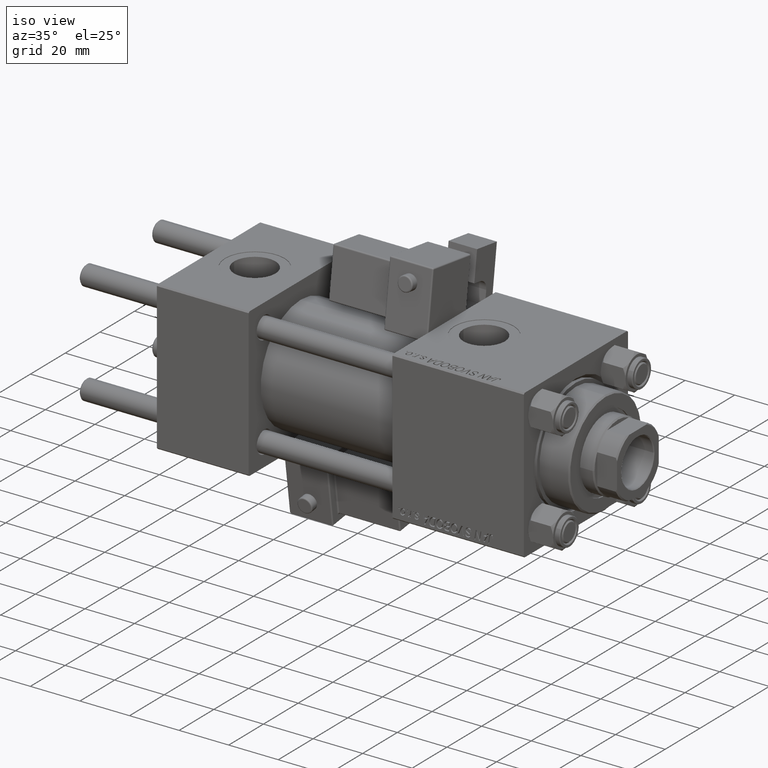
[diagram: clean part render]
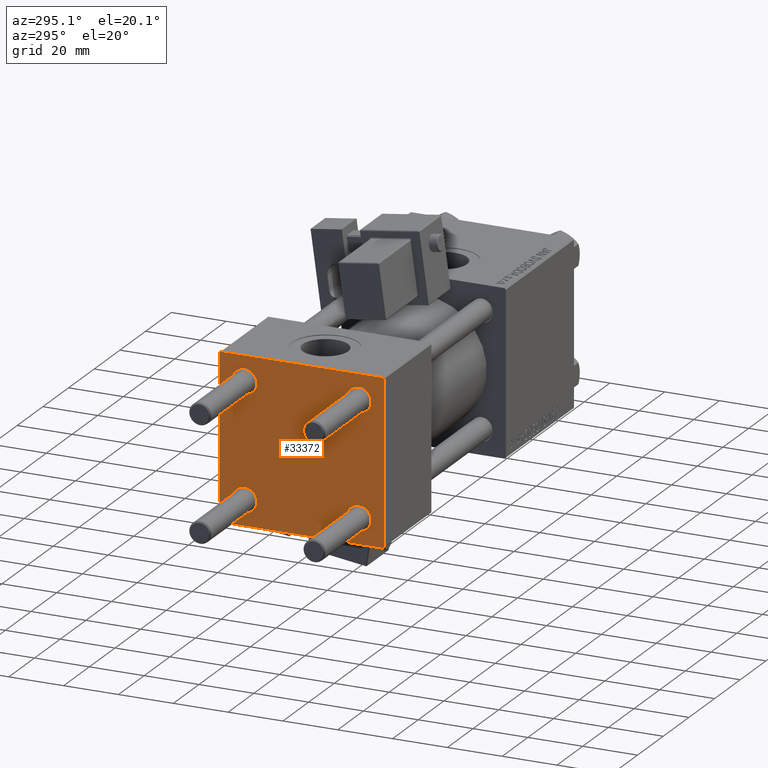
[diagram: tour spotlight — one face highlighted and labeled with its STEP entity id]
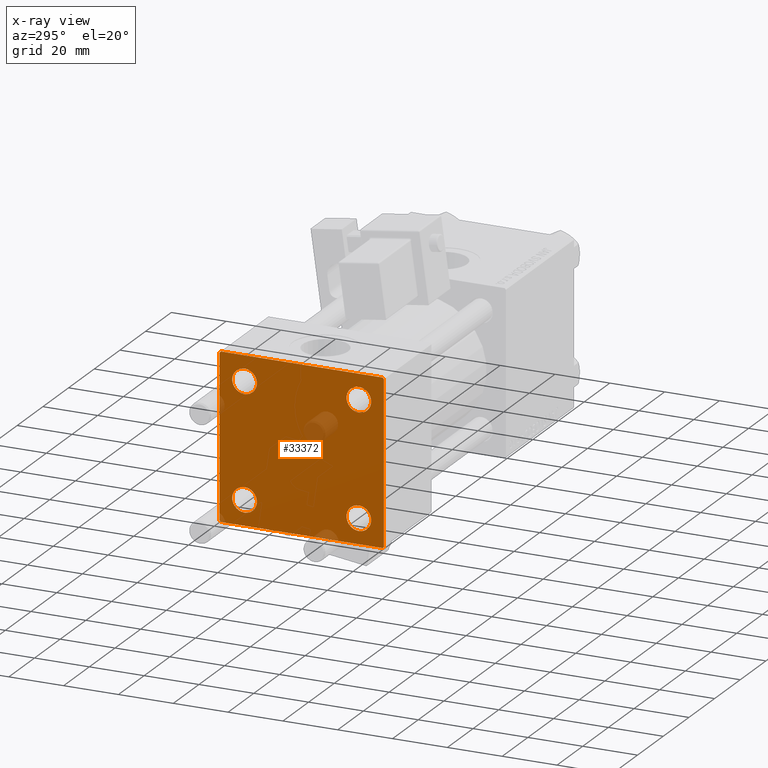
[diagram: x-ray of the same camera — body ghosted, this tour face saturated]
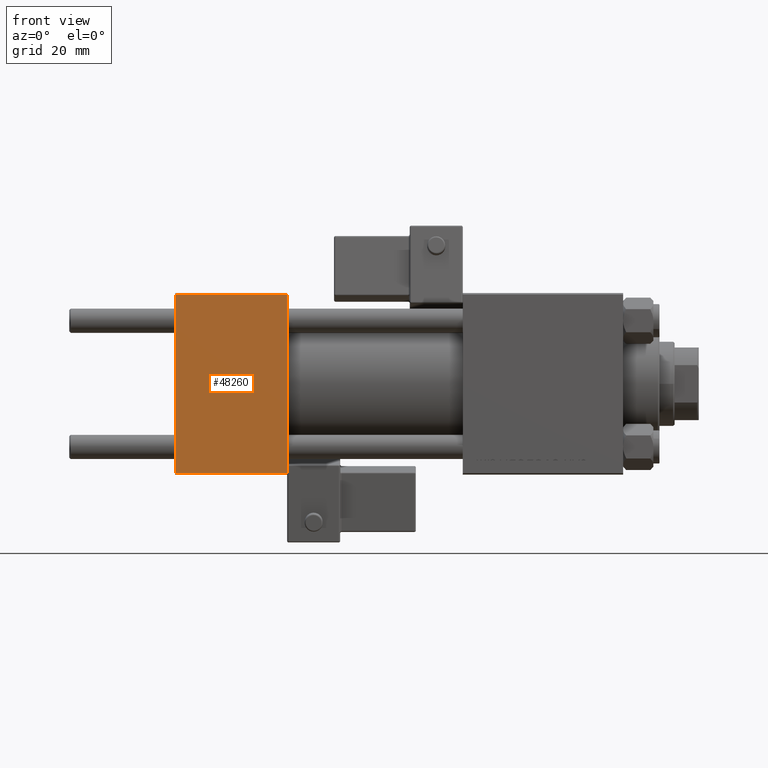
[diagram: tour spotlight — one face highlighted and labeled with its STEP entity id]
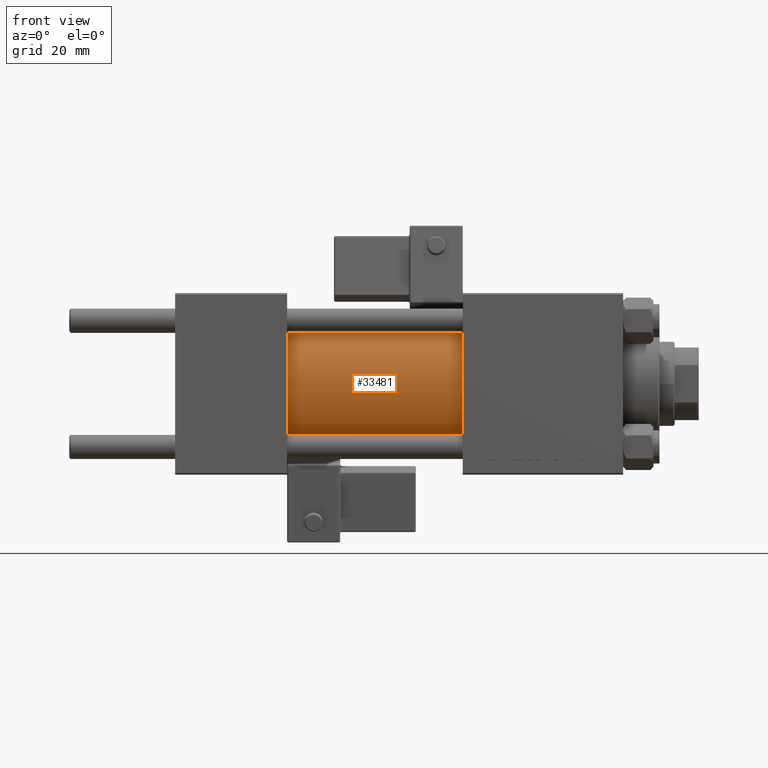
[diagram: tour spotlight — one face highlighted and labeled with its STEP entity id]
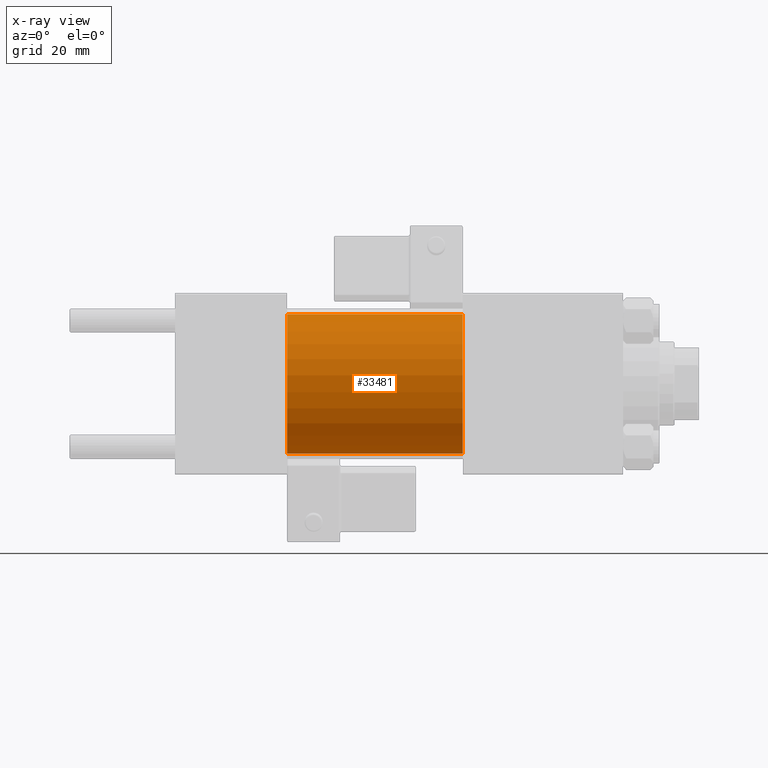
[diagram: x-ray of the same camera — body ghosted, this tour face saturated]
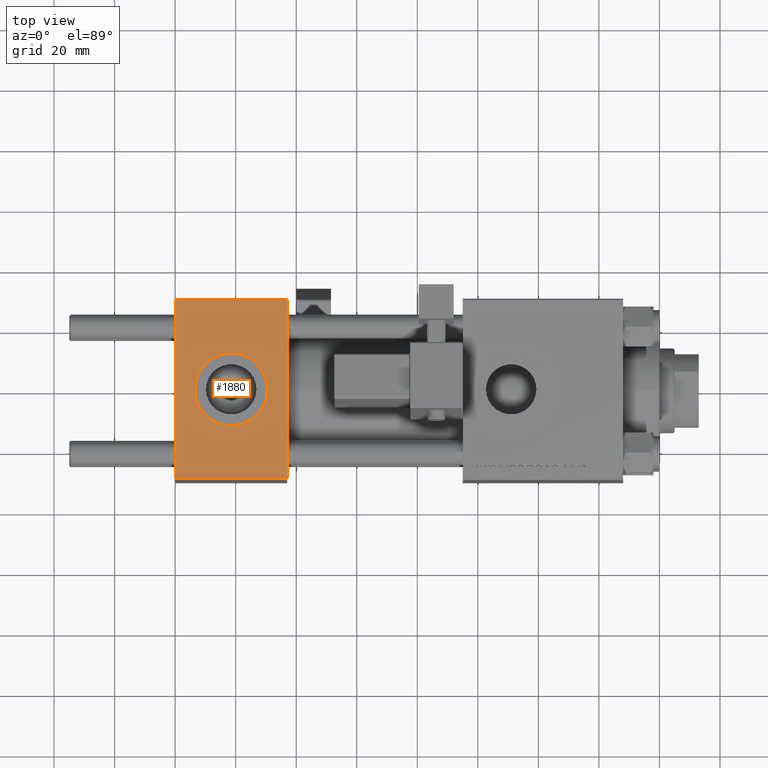
[diagram: tour spotlight — one face highlighted and labeled with its STEP entity id]
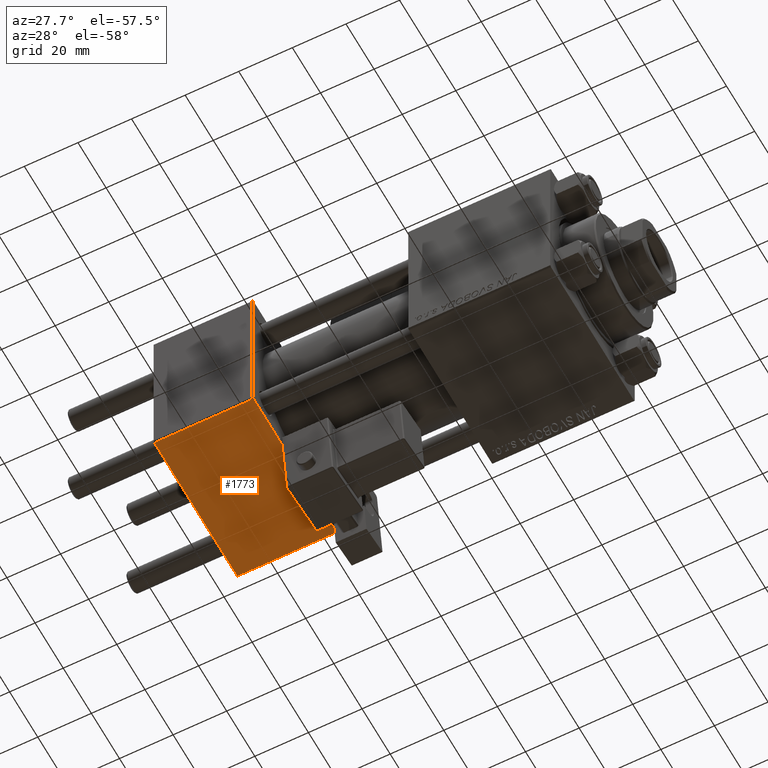
[diagram: tour spotlight — one face highlighted and labeled with its STEP entity id]
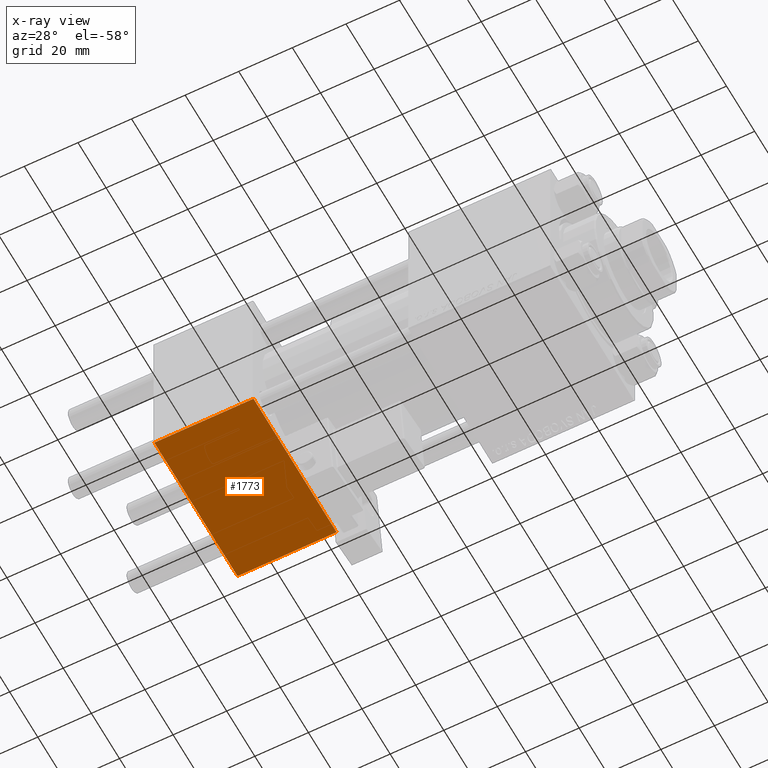
[diagram: x-ray of the same camera — body ghosted, this tour face saturated]
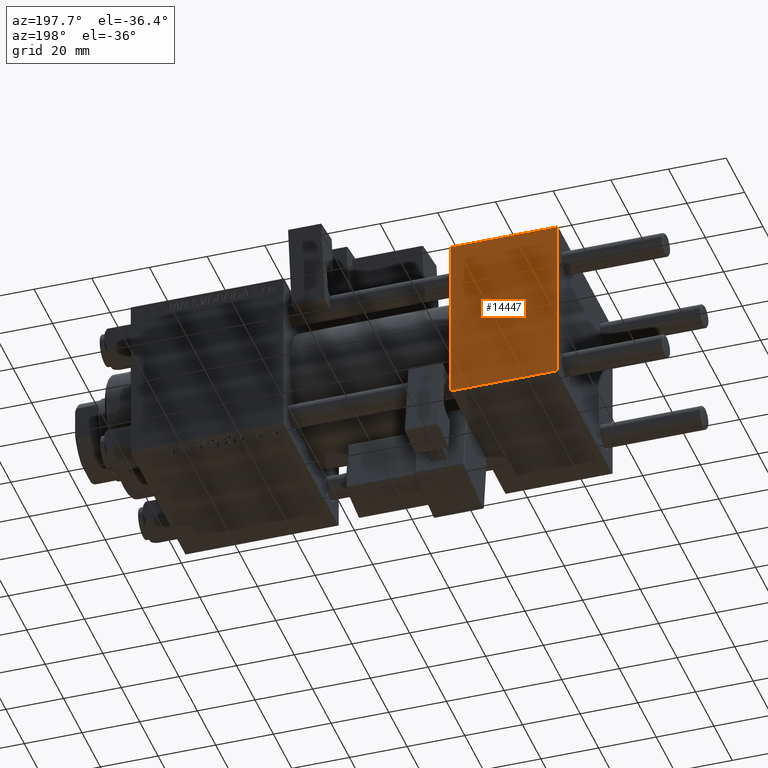
[diagram: tour spotlight — one face highlighted and labeled with its STEP entity id]
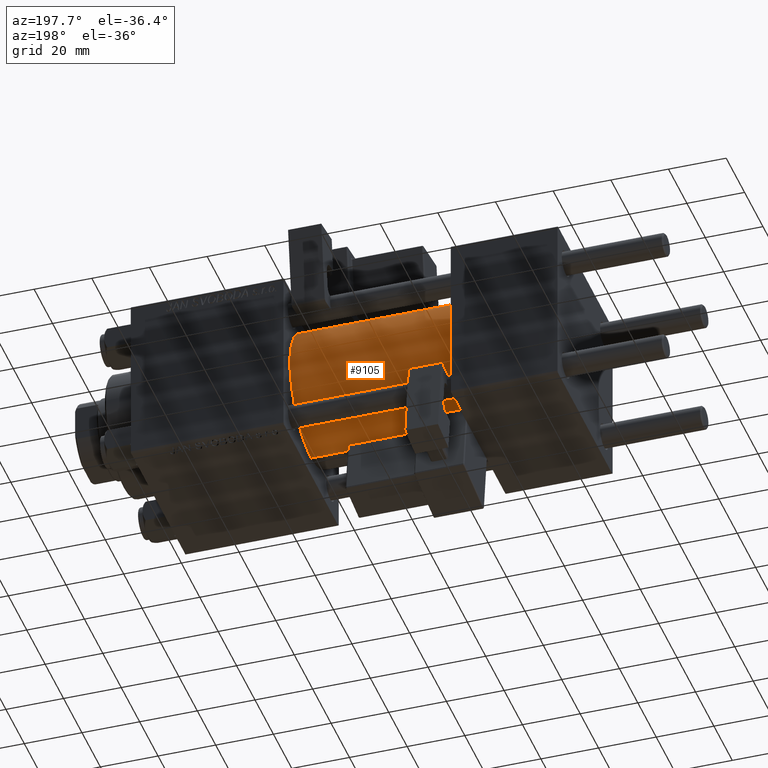
[diagram: tour spotlight — one face highlighted and labeled with its STEP entity id]
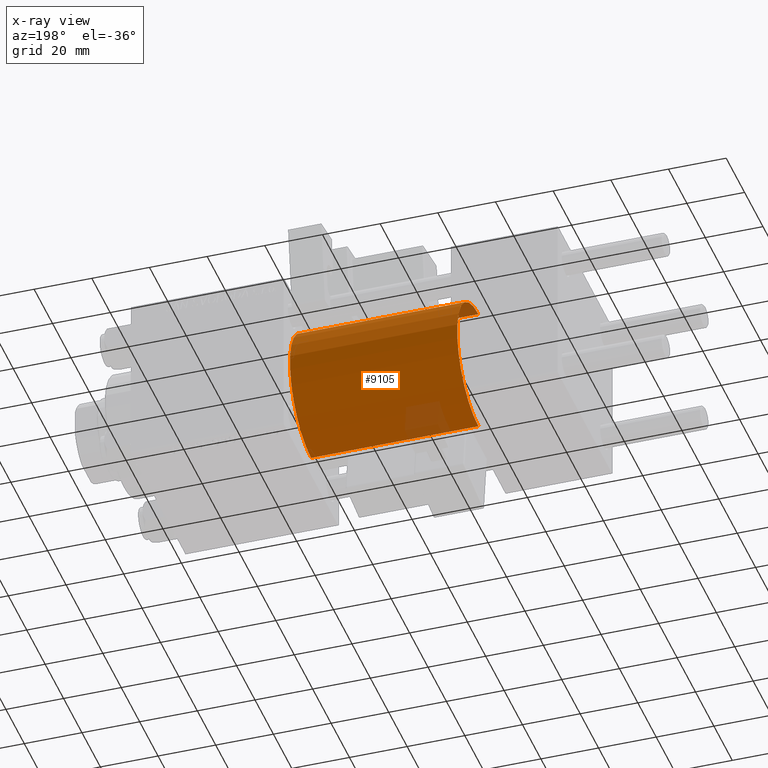
[diagram: x-ray of the same camera — body ghosted, this tour face saturated]
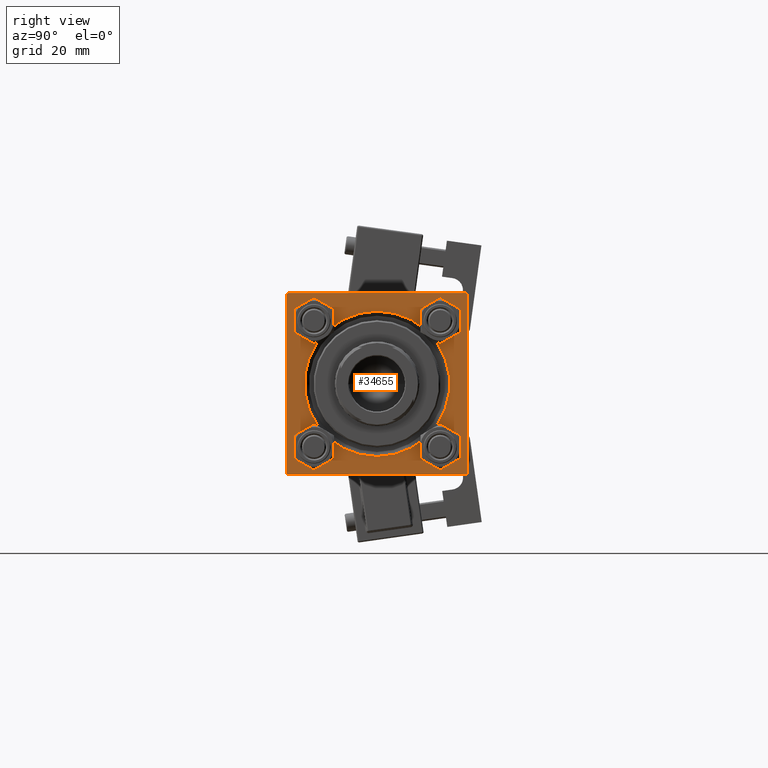
[diagram: tour spotlight — one face highlighted and labeled with its STEP entity id]
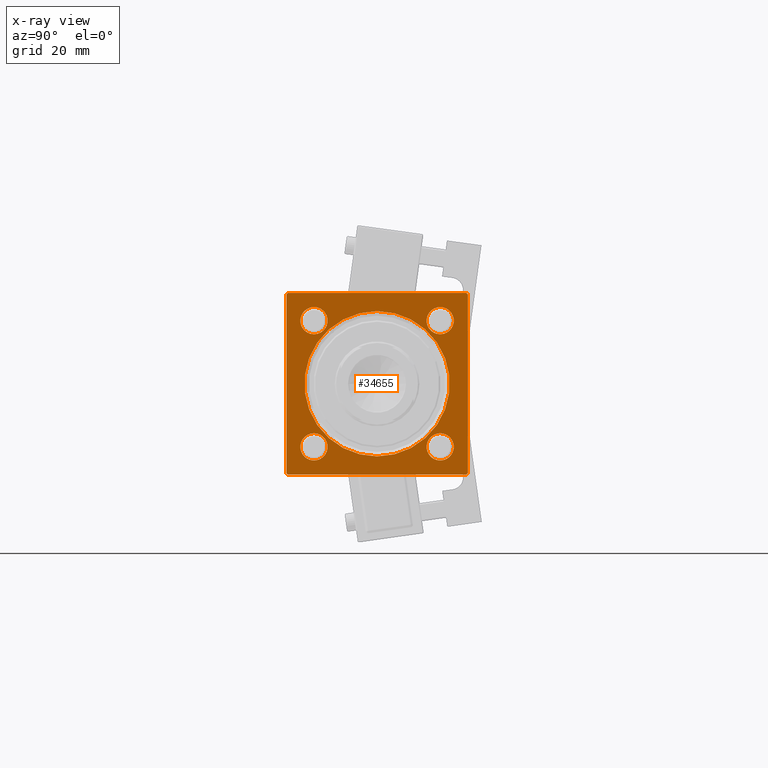
[diagram: x-ray of the same camera — body ghosted, this tour face saturated]
A machine part: a face-by-face anatomy tour. The part has 1289 B-rep faces; the first image is the clean iso view, then the 8 largest visible faces are spotlighted one at a time (largest first), each with its STEP entity span.

Face 1 — auxiliary view, entity #33372. An x-ray twin of the same camera follows (body ghosted, this face saturated) — the face is partly hidden behind the body. In plain terms, the highlighted planar face has unit normal (-1, 0, 0).
Definition (entity closure, byte-faithful):
#312 = DIRECTION ( 'NONE',  ( 1.000000000000000000, -0.000000000000000000, 0.000000000000000000 ) ) ;
#360 = ORIENTED_EDGE ( 'NONE', *, *, #28224, .T. ) ;
#1149 = VERTEX_POINT ( 'NONE', #22209 ) ;
#2247 = EDGE_CURVE ( 'NONE', #10336, #37616, #29978, .T. ) ;
#3004 = ORIENTED_EDGE ( 'NONE', *, *, #37966, .T. ) ;
#3576 = CARTESIAN_POINT ( 'NONE',  ( 0.000000000000000000, 20.84999999999999787, 20.85000000000000142 ) ) ;
#3833 = CIRCLE ( 'NONE', #33278, 4.500000000000017764 ) ;
#4667 = CIRCLE ( 'NONE', #43335, 4.500000000000017764 ) ;
#5404 = PLANE ( 'NONE',  #40659 ) ;
#5896 = DIRECTION ( 'NONE',  ( -0.000000000000000000, 0.7071067811865474617, 0.7071067811865474617 ) ) ;
#6276 = LINE ( 'NONE', #22338, #8776 ) ;
#6334 = CARTESIAN_POINT ( 'NONE',  ( 0.000000000000000000, -20.84999999999999076, -20.85000000000000497 ) ) ;
#6416 = CARTESIAN_POINT ( 'NONE',  ( 0.000000000000000000, 29.99999999999999289, 30.00000000000000000 ) ) ;
#6659 = CARTESIAN_POINT ( 'NONE',  ( -0.000000000000000000, -29.74999999999999645, 29.74999999999999645 ) ) ;
#7785 = CARTESIAN_POINT ( 'NONE',  ( 0.000000000000000000, 29.74999999999999645, 29.74999999999999645 ) ) ;
#8776 = VECTOR ( 'NONE', #42881, 1000.000000000000114 ) ;
#8823 = CARTESIAN_POINT ( 'NONE',  ( 0.000000000000000000, -29.49999999999998579, 29.99999999999999289 ) ) ;
#9014 = CARTESIAN_POINT ( 'NONE',  ( 0.000000000000000000, 20.84999999999999787, -25.35000000000001918 ) ) ;
#9528 = CARTESIAN_POINT ( 'NONE',  ( 0.000000000000000000, 29.49999999999997868, -30.00000000000000000 ) ) ;
#9599 = DIRECTION ( 'NONE',  ( 0.000000000000000000, 0.000000000000000000, 1.000000000000000000 ) ) ;
#9682 = CIRCLE ( 'NONE', #34781, 4.500000000000017764 ) ;
#9891 = AXIS2_PLACEMENT_3D ( 'NONE', #38371, #18350, #50481 ) ;
#10229 = CARTESIAN_POINT ( 'NONE',  ( 0.000000000000000000, 29.49999999999999289, 30.00000000000000000 ) ) ;
#10336 = VERTEX_POINT ( 'NONE', #16909 ) ;
#10354 = VECTOR ( 'NONE', #45690, 1000.000000000000000 ) ;
#10397 = EDGE_CURVE ( 'NONE', #37616, #10336, #20166, .T. ) ;
#10514 = VERTEX_POINT ( 'NONE', #43451 ) ;
#10870 = EDGE_LOOP ( 'NONE', ( #16380, #360 ) ) ;
#11033 = AXIS2_PLACEMENT_3D ( 'NONE', #43988, #24508, #23725 ) ;
#11694 = ORIENTED_EDGE ( 'NONE', *, *, #38946, .T. ) ;
#11739 = DIRECTION ( 'NONE',  ( 0.000000000000000000, 0.7071067811865474617, -0.7071067811865474617 ) ) ;
#11965 = VERTEX_POINT ( 'NONE', #10229 ) ;
#12188 = CARTESIAN_POINT ( 'NONE',  ( 0.000000000000000000, -30.00000000000000000, -29.50000000000001776 ) ) ;
#12196 = LINE ( 'NONE', #40379, #29919 ) ;
#13226 = CARTESIAN_POINT ( 'NONE',  ( 0.000000000000000000, 20.84999999999999787, -20.85000000000000142 ) ) ;
#13227 = EDGE_CURVE ( 'NONE', #34389, #31719, #14053, .T. ) ;
#13630 = CARTESIAN_POINT ( 'NONE',  ( 0.000000000000000000, 29.99999999999999289, 29.50000000000000000 ) ) ;
#13790 = VERTEX_POINT ( 'NONE', #29545 ) ;
#14023 = ORIENTED_EDGE ( 'NONE', *, *, #44993, .T. ) ;
#14053 = LINE ( 'NONE', #6659, #27003 ) ;
#15375 = ORIENTED_EDGE ( 'NONE', *, *, #13227, .T. ) ;
#15692 = DIRECTION ( 'NONE',  ( 1.000000000000000000, -0.000000000000000000, 0.000000000000000000 ) ) ;
#16380 = ORIENTED_EDGE ( 'NONE', *, *, #51815, .T. ) ;
#16909 = CARTESIAN_POINT ( 'NONE',  ( 0.000000000000000000, -20.84999999999999076, -25.35000000000002274 ) ) ;
#16952 = EDGE_CURVE ( 'NONE', #10514, #13790, #39340, .T. ) ;
#16980 = ORIENTED_EDGE ( 'NONE', *, *, #41583, .T. ) ;
#17004 = DIRECTION ( 'NONE',  ( -1.000000000000000000, 0.000000000000000000, -0.000000000000000000 ) ) ;
#17255 = FACE_BOUND ( 'NONE', #17618, .T. ) ;
#17466 = ORIENTED_EDGE ( 'NONE', *, *, #28826, .T. ) ;
#17617 = LINE ( 'NONE', #33931, #28157 ) ;
#17618 = EDGE_LOOP ( 'NONE', ( #17651, #17784 ) ) ;
#17651 = ORIENTED_EDGE ( 'NONE', *, *, #10397, .T. ) ;
#17784 = ORIENTED_EDGE ( 'NONE', *, *, #2247, .T. ) ;
#18350 = DIRECTION ( 'NONE',  ( 1.000000000000000000, -0.000000000000000000, 0.000000000000000000 ) ) ;
#18583 = CARTESIAN_POINT ( 'NONE',  ( 0.000000000000000000, -20.84999999999999076, -20.85000000000000497 ) ) ;
#19196 = VERTEX_POINT ( 'NONE', #13630 ) ;
#19516 = CARTESIAN_POINT ( 'NONE',  ( 0.000000000000000000, -20.84999999999999076, 16.34999999999998721 ) ) ;
#19791 = VERTEX_POINT ( 'NONE', #19516 ) ;
#20166 = CIRCLE ( 'NONE', #51246, 4.500000000000017764 ) ;
#20634 = VERTEX_POINT ( 'NONE', #27093 ) ;
#21467 = DIRECTION ( 'NONE',  ( -0.000000000000000000, 0.000000000000000000, 1.000000000000000000 ) ) ;
#21477 = VERTEX_POINT ( 'NONE', #9014 ) ;
#21726 = CARTESIAN_POINT ( 'NONE',  ( 0.000000000000000000, 29.99999999999999289, -30.00000000000000000 ) ) ;
#22209 = CARTESIAN_POINT ( 'NONE',  ( 0.000000000000000000, -29.50000000000000000, -30.00000000000000711 ) ) ;
#22338 = CARTESIAN_POINT ( 'NONE',  ( 0.000000000000000000, -29.75000000000001066, -29.75000000000001066 ) ) ;
#23725 = DIRECTION ( 'NONE',  ( 0.000000000000000000, 0.000000000000000000, 1.000000000000000000 ) ) ;
#23762 = ORIENTED_EDGE ( 'NONE', *, *, #44448, .T. ) ;
#24508 = DIRECTION ( 'NONE',  ( 1.000000000000000000, -0.000000000000000000, 0.000000000000000000 ) ) ;
#24535 = VECTOR ( 'NONE', #33428, 1000.000000000000000 ) ;
#24904 = CARTESIAN_POINT ( 'NONE',  ( 0.000000000000000000, 0.000000000000000000, 0.000000000000000000 ) ) ;
#25424 = FACE_BOUND ( 'NONE', #10870, .T. ) ;
#25672 = CARTESIAN_POINT ( 'NONE',  ( 0.000000000000000000, 20.84999999999999787, -20.85000000000000142 ) ) ;
#26194 = ORIENTED_EDGE ( 'NONE', *, *, #28292, .F. ) ;
#26949 = LINE ( 'NONE', #6416, #48498 ) ;
#27003 = VECTOR ( 'NONE', #5896, 1000.000000000000114 ) ;
#27093 = CARTESIAN_POINT ( 'NONE',  ( 0.000000000000000000, 20.84999999999999787, -16.34999999999998366 ) ) ;
#27517 = LINE ( 'NONE', #7785, #47222 ) ;
#27889 = VERTEX_POINT ( 'NONE', #12188 ) ;
#28157 = VECTOR ( 'NONE', #30232, 999.9999999999998863 ) ;
#28224 = EDGE_CURVE ( 'NONE', #19791, #37501, #33750, .T. ) ;
#28292 = EDGE_CURVE ( 'NONE', #34389, #27889, #33700, .T. ) ;
#28826 = EDGE_CURVE ( 'NONE', #11965, #19196, #27517, .T. ) ;
#29010 = DIRECTION ( 'NONE',  ( 0.000000000000000000, 0.000000000000000000, 1.000000000000000000 ) ) ;
#29545 = CARTESIAN_POINT ( 'NONE',  ( 0.000000000000000000, 20.84999999999999787, 16.34999999999998366 ) ) ;
#29622 = LINE ( 'NONE', #21726, #10354 ) ;
#29643 = ORIENTED_EDGE ( 'NONE', *, *, #33416, .T. ) ;
#29919 = VECTOR ( 'NONE', #36672, 1000.000000000000000 ) ;
#29978 = CIRCLE ( 'NONE', #40059, 4.500000000000017764 ) ;
#30232 = DIRECTION ( 'NONE',  ( -0.000000000000000000, -0.7071067811865574537, -0.7071067811865376918 ) ) ;
#30812 = EDGE_LOOP ( 'NONE', ( #16980, #38016 ) ) ;
#31142 = CARTESIAN_POINT ( 'NONE',  ( 0.000000000000000000, -20.84999999999999076, 25.35000000000002274 ) ) ;
#31274 = CARTESIAN_POINT ( 'NONE',  ( 0.000000000000000000, -20.84999999999999076, -16.34999999999998721 ) ) ;
#31719 = VERTEX_POINT ( 'NONE', #8823 ) ;
#32595 = CIRCLE ( 'NONE', #9891, 4.500000000000017764 ) ;
#33278 = AXIS2_PLACEMENT_3D ( 'NONE', #3576, #15692, #43875 ) ;
#33372 = ADVANCED_FACE ( 'NONE', ( #25424, #17255, #38050, #41492, #42004 ), #5404, .T. ) ;
#33416 = EDGE_CURVE ( 'NONE', #42861, #1149, #29622, .T. ) ;
#33428 = DIRECTION ( 'NONE',  ( 0.000000000000000000, 0.000000000000000000, -1.000000000000000000 ) ) ;
#33487 = AXIS2_PLACEMENT_3D ( 'NONE', #45661, #34059, #9599 ) ;
#33700 = LINE ( 'NONE', #49235, #24535 ) ;
#33750 = CIRCLE ( 'NONE', #11033, 4.500000000000017764 ) ;
#33931 = CARTESIAN_POINT ( 'NONE',  ( 0.000000000000000000, 29.74999999999957723, -29.75000000000040501 ) ) ;
#34059 = DIRECTION ( 'NONE',  ( 1.000000000000000000, -0.000000000000000000, 0.000000000000000000 ) ) ;
#34389 = VERTEX_POINT ( 'NONE', #49197 ) ;
#34781 = AXIS2_PLACEMENT_3D ( 'NONE', #13226, #312, #29010 ) ;
#36307 = EDGE_LOOP ( 'NONE', ( #44147, #14023 ) ) ;
#36672 = DIRECTION ( 'NONE',  ( 0.000000000000000000, 0.000000000000000000, -1.000000000000000000 ) ) ;
#37027 = DIRECTION ( 'NONE',  ( 1.000000000000000000, -0.000000000000000000, 0.000000000000000000 ) ) ;
#37501 = VERTEX_POINT ( 'NONE', #31142 ) ;
#37516 = EDGE_CURVE ( 'NONE', #21477, #20634, #9682, .T. ) ;
#37616 = VERTEX_POINT ( 'NONE', #31274 ) ;
#37966 = EDGE_CURVE ( 'NONE', #42778, #42861, #17617, .T. ) ;
#38016 = ORIENTED_EDGE ( 'NONE', *, *, #37516, .T. ) ;
#38050 = FACE_BOUND ( 'NONE', #30812, .T. ) ;
#38371 = CARTESIAN_POINT ( 'NONE',  ( 0.000000000000000000, -20.84999999999999076, 20.85000000000000497 ) ) ;
#38946 = EDGE_CURVE ( 'NONE', #1149, #27889, #6276, .T. ) ;
#39340 = CIRCLE ( 'NONE', #33487, 4.500000000000017764 ) ;
#40059 = AXIS2_PLACEMENT_3D ( 'NONE', #18583, #51680, #48004 ) ;
#40379 = CARTESIAN_POINT ( 'NONE',  ( 0.000000000000000000, 29.99999999999999289, 30.00000000000000000 ) ) ;
#40659 = AXIS2_PLACEMENT_3D ( 'NONE', #24904, #17004, #21467 ) ;
#41056 = EDGE_LOOP ( 'NONE', ( #23762, #3004, #29643, #11694, #26194, #15375, #47386, #17466 ) ) ;
#41492 = FACE_BOUND ( 'NONE', #36307, .T. ) ;
#41583 = EDGE_CURVE ( 'NONE', #20634, #21477, #4667, .T. ) ;
#41904 = DIRECTION ( 'NONE',  ( 0.000000000000000000, 0.000000000000000000, 1.000000000000000000 ) ) ;
#42004 = FACE_OUTER_BOUND ( 'NONE', #41056, .T. ) ;
#42762 = DIRECTION ( 'NONE',  ( 0.000000000000000000, -1.000000000000000000, -1.156482317317871725E-16 ) ) ;
#42778 = VERTEX_POINT ( 'NONE', #44028 ) ;
#42861 = VERTEX_POINT ( 'NONE', #9528 ) ;
#42881 = DIRECTION ( 'NONE',  ( 0.000000000000000000, -0.7071067811865474617, 0.7071067811865474617 ) ) ;
#43335 = AXIS2_PLACEMENT_3D ( 'NONE', #25672, #37027, #49651 ) ;
#43451 = CARTESIAN_POINT ( 'NONE',  ( 0.000000000000000000, 20.84999999999999787, 25.35000000000001918 ) ) ;
#43875 = DIRECTION ( 'NONE',  ( 0.000000000000000000, 0.000000000000000000, 1.000000000000000000 ) ) ;
#43988 = CARTESIAN_POINT ( 'NONE',  ( 0.000000000000000000, -20.84999999999999076, 20.85000000000000497 ) ) ;
#44028 = CARTESIAN_POINT ( 'NONE',  ( 0.000000000000000000, 29.99999999999999289, -29.50000000000000000 ) ) ;
#44147 = ORIENTED_EDGE ( 'NONE', *, *, #16952, .T. ) ;
#44448 = EDGE_CURVE ( 'NONE', #19196, #42778, #12196, .T. ) ;
#44993 = EDGE_CURVE ( 'NONE', #13790, #10514, #3833, .T. ) ;
#45661 = CARTESIAN_POINT ( 'NONE',  ( 0.000000000000000000, 20.84999999999999787, 20.85000000000000142 ) ) ;
#45690 = DIRECTION ( 'NONE',  ( 0.000000000000000000, -1.000000000000000000, -1.156482317317871725E-16 ) ) ;
#47222 = VECTOR ( 'NONE', #11739, 1000.000000000000114 ) ;
#47386 = ORIENTED_EDGE ( 'NONE', *, *, #49903, .F. ) ;
#48004 = DIRECTION ( 'NONE',  ( 0.000000000000000000, 0.000000000000000000, 1.000000000000000000 ) ) ;
#48498 = VECTOR ( 'NONE', #42762, 1000.000000000000000 ) ;
#49197 = CARTESIAN_POINT ( 'NONE',  ( 0.000000000000000000, -30.00000000000000000, 29.49999999999999289 ) ) ;
#49235 = CARTESIAN_POINT ( 'NONE',  ( 0.000000000000000000, -30.00000000000000000, 29.99999999999999289 ) ) ;
#49651 = DIRECTION ( 'NONE',  ( 0.000000000000000000, 0.000000000000000000, 1.000000000000000000 ) ) ;
#49903 = EDGE_CURVE ( 'NONE', #11965, #31719, #26949, .T. ) ;
#50481 = DIRECTION ( 'NONE',  ( 0.000000000000000000, 0.000000000000000000, 1.000000000000000000 ) ) ;
#50579 = DIRECTION ( 'NONE',  ( 1.000000000000000000, -0.000000000000000000, 0.000000000000000000 ) ) ;
#51246 = AXIS2_PLACEMENT_3D ( 'NONE', #6334, #50579, #41904 ) ;
#51680 = DIRECTION ( 'NONE',  ( 1.000000000000000000, -0.000000000000000000, 0.000000000000000000 ) ) ;
#51815 = EDGE_CURVE ( 'NONE', #37501, #19791, #32595, .T. ) ;

Face 2 — front view, entity #48260. In plain terms, the highlighted planar face has unit normal (0, 1, 0).
Definition (entity closure, byte-faithful):
#214 = PLANE ( 'NONE',  #45196 ) ;
#1059 = EDGE_CURVE ( 'NONE', #3862, #22306, #14318, .T. ) ;
#2182 = CARTESIAN_POINT ( 'NONE',  ( 37.00000000000000000, -30.00000000000000000, -29.50000000000001776 ) ) ;
#3828 = VECTOR ( 'NONE', #46364, 1000.000000000000000 ) ;
#3862 = VERTEX_POINT ( 'NONE', #31512 ) ;
#4329 = LINE ( 'NONE', #44876, #42091 ) ;
#10722 = ORIENTED_EDGE ( 'NONE', *, *, #42899, .T. ) ;
#10804 = LINE ( 'NONE', #38982, #3828 ) ;
#12188 = CARTESIAN_POINT ( 'NONE',  ( 0.000000000000000000, -30.00000000000000000, -29.50000000000001776 ) ) ;
#12494 = EDGE_CURVE ( 'NONE', #27889, #22306, #4329, .T. ) ;
#13284 = DIRECTION ( 'NONE',  ( 1.000000000000000000, 0.000000000000000000, 0.000000000000000000 ) ) ;
#13329 = ORIENTED_EDGE ( 'NONE', *, *, #28292, .T. ) ;
#14318 = LINE ( 'NONE', #38536, #25000 ) ;
#18512 = DIRECTION ( 'NONE',  ( 0.000000000000000000, 0.000000000000000000, -1.000000000000000000 ) ) ;
#22306 = VERTEX_POINT ( 'NONE', #2182 ) ;
#24535 = VECTOR ( 'NONE', #33428, 1000.000000000000000 ) ;
#25000 = VECTOR ( 'NONE', #18512, 1000.000000000000000 ) ;
#27889 = VERTEX_POINT ( 'NONE', #12188 ) ;
#28292 = EDGE_CURVE ( 'NONE', #34389, #27889, #33700, .T. ) ;
#31512 = CARTESIAN_POINT ( 'NONE',  ( 37.00000000000000000, -30.00000000000000000, 29.49999999999999289 ) ) ;
#31588 = EDGE_LOOP ( 'NONE', ( #13329, #33085, #51766, #10722 ) ) ;
#32348 = FACE_OUTER_BOUND ( 'NONE', #31588, .T. ) ;
#33085 = ORIENTED_EDGE ( 'NONE', *, *, #12494, .T. ) ;
#33130 = DIRECTION ( 'NONE',  ( 0.000000000000000000, -0.000000000000000000, 1.000000000000000000 ) ) ;
#33428 = DIRECTION ( 'NONE',  ( 0.000000000000000000, 0.000000000000000000, -1.000000000000000000 ) ) ;
#33700 = LINE ( 'NONE', #49235, #24535 ) ;
#34389 = VERTEX_POINT ( 'NONE', #49197 ) ;
#36822 = DIRECTION ( 'NONE',  ( -0.000000000000000000, 1.000000000000000000, 0.000000000000000000 ) ) ;
#38536 = CARTESIAN_POINT ( 'NONE',  ( 37.00000000000000000, -30.00000000000000000, 29.99999999999999289 ) ) ;
#38982 = CARTESIAN_POINT ( 'NONE',  ( 37.00000000000000000, -30.00000000000000000, 29.49999999999999289 ) ) ;
#42091 = VECTOR ( 'NONE', #13284, 1000.000000000000000 ) ;
#42899 = EDGE_CURVE ( 'NONE', #3862, #34389, #10804, .T. ) ;
#44876 = CARTESIAN_POINT ( 'NONE',  ( 37.00000000000000000, -30.00000000000000000, -29.50000000000001776 ) ) ;
#45196 = AXIS2_PLACEMENT_3D ( 'NONE', #48935, #36822, #33130 ) ;
#46364 = DIRECTION ( 'NONE',  ( -1.000000000000000000, 0.000000000000000000, 0.000000000000000000 ) ) ;
#48260 = ADVANCED_FACE ( 'NONE', ( #32348 ), #214, .F. ) ;
#48935 = CARTESIAN_POINT ( 'NONE',  ( 37.00000000000000000, -30.00000000000000000, 29.99999999999999289 ) ) ;
#49197 = CARTESIAN_POINT ( 'NONE',  ( 0.000000000000000000, -30.00000000000000000, 29.49999999999999289 ) ) ;
#49235 = CARTESIAN_POINT ( 'NONE',  ( 0.000000000000000000, -30.00000000000000000, 29.99999999999999289 ) ) ;
#51766 = ORIENTED_EDGE ( 'NONE', *, *, #1059, .F. ) ;

Face 3 — front view, entity #33481. An x-ray twin of the same camera follows (body ghosted, this face saturated) — the face is partly hidden behind the body. In plain terms, the highlighted cylindrical surface (partial cylindrical patch) has radius 23 mm, axis along (-1, -0, -0).
Definition (entity closure, byte-faithful):
#835 = VERTEX_POINT ( 'NONE', #42287 ) ;
#1257 = CARTESIAN_POINT ( 'NONE',  ( 95.00000000000000000, 0.000000000000000000, 23.00000000000000000 ) ) ;
#3415 = LINE ( 'NONE', #11571, #17624 ) ;
#3992 = DIRECTION ( 'NONE',  ( -1.000000000000000000, -0.000000000000000000, -0.000000000000000000 ) ) ;
#4977 = ORIENTED_EDGE ( 'NONE', *, *, #18696, .F. ) ;
#5972 = CARTESIAN_POINT ( 'NONE',  ( 95.00000000000000000, 0.000000000000000000, 0.000000000000000000 ) ) ;
#6205 = CIRCLE ( 'NONE', #17159, 23.00000000000000000 ) ;
#7420 = LINE ( 'NONE', #35079, #40561 ) ;
#7625 = DIRECTION ( 'NONE',  ( -1.000000000000000000, -0.000000000000000000, -0.000000000000000000 ) ) ;
#8690 = ORIENTED_EDGE ( 'NONE', *, *, #38685, .T. ) ;
#9344 = EDGE_CURVE ( 'NONE', #41883, #21054, #3415, .T. ) ;
#11164 = FACE_OUTER_BOUND ( 'NONE', #14425, .T. ) ;
#11571 = CARTESIAN_POINT ( 'NONE',  ( 95.00000000000000000, 2.816687638038911957E-15, -23.00000000000000000 ) ) ;
#11676 = AXIS2_PLACEMENT_3D ( 'NONE', #5972, #37845, #49694 ) ;
#13287 = DIRECTION ( 'NONE',  ( 1.000000000000000000, -0.000000000000000000, 0.000000000000000000 ) ) ;
#14351 = CARTESIAN_POINT ( 'NONE',  ( 95.00000000000000000, 0.000000000000000000, 0.000000000000000000 ) ) ;
#14425 = EDGE_LOOP ( 'NONE', ( #24491, #4977, #26805, #8690 ) ) ;
#17159 = AXIS2_PLACEMENT_3D ( 'NONE', #46885, #13287, #34522 ) ;
#17624 = VECTOR ( 'NONE', #7625, 1000.000000000000000 ) ;
#18097 = CARTESIAN_POINT ( 'NONE',  ( 37.00000000000000000, 2.816687638038911957E-15, -23.00000000000000000 ) ) ;
#18696 = EDGE_CURVE ( 'NONE', #24519, #41883, #37771, .T. ) ;
#21054 = VERTEX_POINT ( 'NONE', #18097 ) ;
#22240 = DIRECTION ( 'NONE',  ( 0.000000000000000000, 0.000000000000000000, 1.000000000000000000 ) ) ;
#24491 = ORIENTED_EDGE ( 'NONE', *, *, #9344, .F. ) ;
#24519 = VERTEX_POINT ( 'NONE', #1257 ) ;
#26805 = ORIENTED_EDGE ( 'NONE', *, *, #29875, .T. ) ;
#29875 = EDGE_CURVE ( 'NONE', #24519, #835, #7420, .T. ) ;
#31434 = CARTESIAN_POINT ( 'NONE',  ( 95.00000000000000000, 2.816687638038911957E-15, -23.00000000000000000 ) ) ;
#33481 = ADVANCED_FACE ( 'NONE', ( #11164 ), #34614, .T. ) ;
#34522 = DIRECTION ( 'NONE',  ( 0.000000000000000000, 0.000000000000000000, 1.000000000000000000 ) ) ;
#34614 = CYLINDRICAL_SURFACE ( 'NONE', #48242, 23.00000000000000000 ) ;
#35079 = CARTESIAN_POINT ( 'NONE',  ( 95.00000000000000000, 0.000000000000000000, 23.00000000000000000 ) ) ;
#37771 = CIRCLE ( 'NONE', #11676, 23.00000000000000000 ) ;
#37845 = DIRECTION ( 'NONE',  ( 1.000000000000000000, 0.000000000000000000, 0.000000000000000000 ) ) ;
#38685 = EDGE_CURVE ( 'NONE', #835, #21054, #6205, .T. ) ;
#40561 = VECTOR ( 'NONE', #3992, 1000.000000000000000 ) ;
#41883 = VERTEX_POINT ( 'NONE', #31434 ) ;
#42287 = CARTESIAN_POINT ( 'NONE',  ( 37.00000000000000000, 0.000000000000000000, 23.00000000000000000 ) ) ;
#42510 = DIRECTION ( 'NONE',  ( -1.000000000000000000, -0.000000000000000000, -0.000000000000000000 ) ) ;
#46885 = CARTESIAN_POINT ( 'NONE',  ( 37.00000000000000000, 0.000000000000000000, 0.000000000000000000 ) ) ;
#48242 = AXIS2_PLACEMENT_3D ( 'NONE', #14351, #42510, #22240 ) ;
#49694 = DIRECTION ( 'NONE',  ( 0.000000000000000000, 0.000000000000000000, -1.000000000000000000 ) ) ;

Face 4 — top view, entity #1880. In plain terms, the highlighted planar face has unit normal (0, 0, -1).
Definition (entity closure, byte-faithful):
#325 = CARTESIAN_POINT ( 'NONE',  ( 18.50000000000000000, -3.469446951953614978E-15, 29.99999999999999645 ) ) ;
#1880 = ADVANCED_FACE ( 'NONE', ( #19435, #46824 ), #43391, .F. ) ;
#3317 = AXIS2_PLACEMENT_3D ( 'NONE', #40069, #7939, #32167 ) ;
#3320 = VECTOR ( 'NONE', #6114, 1000.000000000000000 ) ;
#3585 = ORIENTED_EDGE ( 'NONE', *, *, #20970, .T. ) ;
#4448 = ORIENTED_EDGE ( 'NONE', *, *, #49903, .T. ) ;
#5097 = LINE ( 'NONE', #26132, #3320 ) ;
#6054 = EDGE_LOOP ( 'NONE', ( #32560, #35479 ) ) ;
#6114 = DIRECTION ( 'NONE',  ( -1.000000000000000000, 0.000000000000000000, 0.000000000000000000 ) ) ;
#6241 = LINE ( 'NONE', #18349, #43717 ) ;
#6416 = CARTESIAN_POINT ( 'NONE',  ( 0.000000000000000000, 29.99999999999999289, 30.00000000000000000 ) ) ;
#7939 = DIRECTION ( 'NONE',  ( 0.000000000000000000, 0.000000000000000000, 1.000000000000000000 ) ) ;
#8823 = CARTESIAN_POINT ( 'NONE',  ( 0.000000000000000000, -29.49999999999998579, 29.99999999999999289 ) ) ;
#10229 = CARTESIAN_POINT ( 'NONE',  ( 0.000000000000000000, 29.49999999999999289, 30.00000000000000000 ) ) ;
#10751 = DIRECTION ( 'NONE',  ( 0.000000000000000000, 1.000000000000000000, 1.156482317317871725E-16 ) ) ;
#11012 = VERTEX_POINT ( 'NONE', #51845 ) ;
#11965 = VERTEX_POINT ( 'NONE', #10229 ) ;
#13208 = VERTEX_POINT ( 'NONE', #41208 ) ;
#15029 = AXIS2_PLACEMENT_3D ( 'NONE', #325, #29021, #48784 ) ;
#16665 = LINE ( 'NONE', #25081, #26454 ) ;
#17939 = EDGE_CURVE ( 'NONE', #11012, #13208, #32657, .T. ) ;
#18349 = CARTESIAN_POINT ( 'NONE',  ( 37.00000000000000000, -29.50000000000000000, 29.99999999999999289 ) ) ;
#18367 = ORIENTED_EDGE ( 'NONE', *, *, #21193, .T. ) ;
#19435 = FACE_BOUND ( 'NONE', #6054, .T. ) ;
#19955 = DIRECTION ( 'NONE',  ( 0.000000000000000000, 1.156482317317871725E-16, -1.000000000000000000 ) ) ;
#20970 = EDGE_CURVE ( 'NONE', #31719, #51013, #6241, .T. ) ;
#21193 = EDGE_CURVE ( 'NONE', #50102, #11965, #5097, .T. ) ;
#22389 = AXIS2_PLACEMENT_3D ( 'NONE', #38932, #19955, #10751 ) ;
#24911 = EDGE_CURVE ( 'NONE', #13208, #11012, #47039, .T. ) ;
#25081 = CARTESIAN_POINT ( 'NONE',  ( 37.00000000000000000, 29.99999999999999289, 30.00000000000000000 ) ) ;
#26132 = CARTESIAN_POINT ( 'NONE',  ( 0.000000000000000000, 29.49999999999999289, 30.00000000000000000 ) ) ;
#26454 = VECTOR ( 'NONE', #32724, 1000.000000000000000 ) ;
#26949 = LINE ( 'NONE', #6416, #48498 ) ;
#29021 = DIRECTION ( 'NONE',  ( 0.000000000000000000, 0.000000000000000000, 1.000000000000000000 ) ) ;
#29113 = ORIENTED_EDGE ( 'NONE', *, *, #40558, .F. ) ;
#31719 = VERTEX_POINT ( 'NONE', #8823 ) ;
#32167 = DIRECTION ( 'NONE',  ( 1.000000000000000000, 0.000000000000000000, 0.000000000000000000 ) ) ;
#32560 = ORIENTED_EDGE ( 'NONE', *, *, #24911, .F. ) ;
#32657 = CIRCLE ( 'NONE', #15029, 12.00000000000000000 ) ;
#32724 = DIRECTION ( 'NONE',  ( 0.000000000000000000, -1.000000000000000000, -1.156482317317871725E-16 ) ) ;
#33907 = EDGE_LOOP ( 'NONE', ( #4448, #3585, #29113, #18367 ) ) ;
#35479 = ORIENTED_EDGE ( 'NONE', *, *, #17939, .F. ) ;
#37860 = DIRECTION ( 'NONE',  ( 1.000000000000000000, 0.000000000000000000, 0.000000000000000000 ) ) ;
#38932 = CARTESIAN_POINT ( 'NONE',  ( 37.00000000000000000, 29.99999999999999289, 30.00000000000000000 ) ) ;
#40069 = CARTESIAN_POINT ( 'NONE',  ( 18.50000000000000000, -3.469446951953614978E-15, 29.99999999999999645 ) ) ;
#40558 = EDGE_CURVE ( 'NONE', #50102, #51013, #16665, .T. ) ;
#40639 = CARTESIAN_POINT ( 'NONE',  ( 37.00000000000000000, 29.49999999999999289, 30.00000000000000000 ) ) ;
#41208 = CARTESIAN_POINT ( 'NONE',  ( 30.50000000000000000, -3.469446951953614978E-15, 29.99999999999999645 ) ) ;
#42762 = DIRECTION ( 'NONE',  ( 0.000000000000000000, -1.000000000000000000, -1.156482317317871725E-16 ) ) ;
#43391 = PLANE ( 'NONE',  #22389 ) ;
#43717 = VECTOR ( 'NONE', #37860, 1000.000000000000000 ) ;
#46824 = FACE_OUTER_BOUND ( 'NONE', #33907, .T. ) ;
#47039 = CIRCLE ( 'NONE', #3317, 12.00000000000000000 ) ;
#48498 = VECTOR ( 'NONE', #42762, 1000.000000000000000 ) ;
#48784 = DIRECTION ( 'NONE',  ( 1.000000000000000000, 0.000000000000000000, 0.000000000000000000 ) ) ;
#49903 = EDGE_CURVE ( 'NONE', #11965, #31719, #26949, .T. ) ;
#50102 = VERTEX_POINT ( 'NONE', #40639 ) ;
#51013 = VERTEX_POINT ( 'NONE', #51503 ) ;
#51503 = CARTESIAN_POINT ( 'NONE',  ( 37.00000000000000000, -29.49999999999998579, 29.99999999999999289 ) ) ;
#51845 = CARTESIAN_POINT ( 'NONE',  ( 6.499999999999997335, -1.999870792976790833E-15, 29.99999999999999645 ) ) ;

Face 5 — auxiliary view, entity #1773. An x-ray twin of the same camera follows (body ghosted, this face saturated) — the face is partly hidden behind the body. In plain terms, the highlighted planar face has unit normal (0, 0, -1).
Definition (entity closure, byte-faithful):
#1130 = DIRECTION ( 'NONE',  ( 0.000000000000000000, -1.000000000000000000, -1.156482317317871725E-16 ) ) ;
#1149 = VERTEX_POINT ( 'NONE', #22209 ) ;
#1298 = DIRECTION ( 'NONE',  ( 0.000000000000000000, 1.156482317317871725E-16, -1.000000000000000000 ) ) ;
#1525 = EDGE_CURVE ( 'NONE', #14865, #1149, #5832, .T. ) ;
#1773 = ADVANCED_FACE ( 'NONE', ( #16858 ), #21315, .T. ) ;
#1874 = DIRECTION ( 'NONE',  ( -1.000000000000000000, 0.000000000000000000, 0.000000000000000000 ) ) ;
#2041 = ORIENTED_EDGE ( 'NONE', *, *, #33416, .F. ) ;
#2180 = AXIS2_PLACEMENT_3D ( 'NONE', #37383, #1298, #17359 ) ;
#5110 = EDGE_CURVE ( 'NONE', #42861, #36584, #51475, .T. ) ;
#5597 = LINE ( 'NONE', #25866, #14338 ) ;
#5832 = LINE ( 'NONE', #42174, #27406 ) ;
#9528 = CARTESIAN_POINT ( 'NONE',  ( 0.000000000000000000, 29.49999999999997868, -30.00000000000000000 ) ) ;
#10354 = VECTOR ( 'NONE', #45690, 1000.000000000000000 ) ;
#11721 = DIRECTION ( 'NONE',  ( 1.000000000000000000, 0.000000000000000000, 0.000000000000000000 ) ) ;
#14338 = VECTOR ( 'NONE', #1130, 1000.000000000000000 ) ;
#14865 = VERTEX_POINT ( 'NONE', #33439 ) ;
#15457 = EDGE_CURVE ( 'NONE', #36584, #14865, #5597, .T. ) ;
#16858 = FACE_OUTER_BOUND ( 'NONE', #32344, .T. ) ;
#17359 = DIRECTION ( 'NONE',  ( 0.000000000000000000, 1.000000000000000000, 1.156482317317871725E-16 ) ) ;
#17777 = ORIENTED_EDGE ( 'NONE', *, *, #1525, .T. ) ;
#21315 = PLANE ( 'NONE',  #2180 ) ;
#21726 = CARTESIAN_POINT ( 'NONE',  ( 0.000000000000000000, 29.99999999999999289, -30.00000000000000000 ) ) ;
#22209 = CARTESIAN_POINT ( 'NONE',  ( 0.000000000000000000, -29.50000000000000000, -30.00000000000000711 ) ) ;
#24163 = VECTOR ( 'NONE', #11721, 1000.000000000000000 ) ;
#25866 = CARTESIAN_POINT ( 'NONE',  ( 37.00000000000000000, 29.99999999999999289, -30.00000000000000000 ) ) ;
#27406 = VECTOR ( 'NONE', #1874, 1000.000000000000000 ) ;
#29622 = LINE ( 'NONE', #21726, #10354 ) ;
#32344 = EDGE_LOOP ( 'NONE', ( #2041, #46234, #45000, #17777 ) ) ;
#33416 = EDGE_CURVE ( 'NONE', #42861, #1149, #29622, .T. ) ;
#33439 = CARTESIAN_POINT ( 'NONE',  ( 37.00000000000000000, -29.50000000000000000, -30.00000000000000711 ) ) ;
#34241 = CARTESIAN_POINT ( 'NONE',  ( 37.00000000000000000, 29.49999999999997868, -30.00000000000000000 ) ) ;
#35420 = CARTESIAN_POINT ( 'NONE',  ( 37.00000000000000000, 29.49999999999997868, -30.00000000000000000 ) ) ;
#36584 = VERTEX_POINT ( 'NONE', #34241 ) ;
#37383 = CARTESIAN_POINT ( 'NONE',  ( 37.00000000000000000, 29.99999999999999289, -30.00000000000000000 ) ) ;
#42174 = CARTESIAN_POINT ( 'NONE',  ( 0.000000000000000000, -29.50000000000001066, -30.00000000000000711 ) ) ;
#42861 = VERTEX_POINT ( 'NONE', #9528 ) ;
#45000 = ORIENTED_EDGE ( 'NONE', *, *, #15457, .T. ) ;
#45690 = DIRECTION ( 'NONE',  ( 0.000000000000000000, -1.000000000000000000, -1.156482317317871725E-16 ) ) ;
#46234 = ORIENTED_EDGE ( 'NONE', *, *, #5110, .T. ) ;
#51475 = LINE ( 'NONE', #35420, #24163 ) ;

Face 6 — auxiliary view, entity #14447. In plain terms, the highlighted planar face has unit normal (0, 1, 0).
Definition (entity closure, byte-faithful):
#1133 = CARTESIAN_POINT ( 'NONE',  ( 37.00000000000000000, 29.99999999999999289, 29.50000000000000000 ) ) ;
#2585 = EDGE_LOOP ( 'NONE', ( #21555, #48752, #33413, #23413 ) ) ;
#7374 = DIRECTION ( 'NONE',  ( -1.000000000000000000, 0.000000000000000000, 0.000000000000000000 ) ) ;
#7977 = VECTOR ( 'NONE', #10185, 1000.000000000000000 ) ;
#7986 = CARTESIAN_POINT ( 'NONE',  ( 37.00000000000000000, 29.99999999999999289, 30.00000000000000000 ) ) ;
#9104 = CARTESIAN_POINT ( 'NONE',  ( 37.00000000000000000, 29.99999999999999289, 29.50000000000000000 ) ) ;
#10185 = DIRECTION ( 'NONE',  ( 0.000000000000000000, 0.000000000000000000, -1.000000000000000000 ) ) ;
#12196 = LINE ( 'NONE', #40379, #29919 ) ;
#13069 = CARTESIAN_POINT ( 'NONE',  ( 37.00000000000000000, 29.99999999999999289, -29.50000000000000000 ) ) ;
#13630 = CARTESIAN_POINT ( 'NONE',  ( 0.000000000000000000, 29.99999999999999289, 29.50000000000000000 ) ) ;
#14447 = ADVANCED_FACE ( 'NONE', ( #48016 ), #40385, .T. ) ;
#16834 = AXIS2_PLACEMENT_3D ( 'NONE', #7986, #20874, #31954 ) ;
#19196 = VERTEX_POINT ( 'NONE', #13630 ) ;
#20874 = DIRECTION ( 'NONE',  ( -0.000000000000000000, 1.000000000000000000, 0.000000000000000000 ) ) ;
#21555 = ORIENTED_EDGE ( 'NONE', *, *, #40068, .T. ) ;
#21771 = CARTESIAN_POINT ( 'NONE',  ( 37.00000000000000000, 29.99999999999999289, 30.00000000000000000 ) ) ;
#22764 = VECTOR ( 'NONE', #41229, 1000.000000000000000 ) ;
#23413 = ORIENTED_EDGE ( 'NONE', *, *, #24022, .T. ) ;
#24022 = EDGE_CURVE ( 'NONE', #19196, #33671, #45164, .T. ) ;
#29919 = VECTOR ( 'NONE', #36672, 1000.000000000000000 ) ;
#31954 = DIRECTION ( 'NONE',  ( 0.000000000000000000, -0.000000000000000000, 1.000000000000000000 ) ) ;
#33413 = ORIENTED_EDGE ( 'NONE', *, *, #44448, .F. ) ;
#33671 = VERTEX_POINT ( 'NONE', #1133 ) ;
#36243 = VERTEX_POINT ( 'NONE', #13069 ) ;
#36672 = DIRECTION ( 'NONE',  ( 0.000000000000000000, 0.000000000000000000, -1.000000000000000000 ) ) ;
#38820 = EDGE_CURVE ( 'NONE', #36243, #42778, #43725, .T. ) ;
#38869 = LINE ( 'NONE', #21771, #7977 ) ;
#40068 = EDGE_CURVE ( 'NONE', #33671, #36243, #38869, .T. ) ;
#40379 = CARTESIAN_POINT ( 'NONE',  ( 0.000000000000000000, 29.99999999999999289, 30.00000000000000000 ) ) ;
#40385 = PLANE ( 'NONE',  #16834 ) ;
#40728 = VECTOR ( 'NONE', #7374, 1000.000000000000000 ) ;
#41229 = DIRECTION ( 'NONE',  ( 1.000000000000000000, 0.000000000000000000, 0.000000000000000000 ) ) ;
#42778 = VERTEX_POINT ( 'NONE', #44028 ) ;
#43725 = LINE ( 'NONE', #51357, #40728 ) ;
#44028 = CARTESIAN_POINT ( 'NONE',  ( 0.000000000000000000, 29.99999999999999289, -29.50000000000000000 ) ) ;
#44448 = EDGE_CURVE ( 'NONE', #19196, #42778, #12196, .T. ) ;
#45164 = LINE ( 'NONE', #9104, #22764 ) ;
#48016 = FACE_OUTER_BOUND ( 'NONE', #2585, .T. ) ;
#48752 = ORIENTED_EDGE ( 'NONE', *, *, #38820, .T. ) ;
#51357 = CARTESIAN_POINT ( 'NONE',  ( 37.00000000000000000, 29.99999999999999289, -29.50000000000000000 ) ) ;

Face 7 — auxiliary view, entity #9105. An x-ray twin of the same camera follows (body ghosted, this face saturated) — the face is partly hidden behind the body. In plain terms, the highlighted cylindrical surface (partial cylindrical patch) has radius 23 mm, axis along (-1, -0, -0).
Definition (entity closure, byte-faithful):
#835 = VERTEX_POINT ( 'NONE', #42287 ) ;
#1257 = CARTESIAN_POINT ( 'NONE',  ( 95.00000000000000000, 0.000000000000000000, 23.00000000000000000 ) ) ;
#1696 = CARTESIAN_POINT ( 'NONE',  ( 37.00000000000000000, 0.000000000000000000, 0.000000000000000000 ) ) ;
#3415 = LINE ( 'NONE', #11571, #17624 ) ;
#3532 = FACE_OUTER_BOUND ( 'NONE', #14237, .T. ) ;
#3992 = DIRECTION ( 'NONE',  ( -1.000000000000000000, -0.000000000000000000, -0.000000000000000000 ) ) ;
#5983 = AXIS2_PLACEMENT_3D ( 'NONE', #1696, #25919, #46702 ) ;
#7420 = LINE ( 'NONE', #35079, #40561 ) ;
#7625 = DIRECTION ( 'NONE',  ( -1.000000000000000000, -0.000000000000000000, -0.000000000000000000 ) ) ;
#9105 = ADVANCED_FACE ( 'NONE', ( #3532 ), #31699, .T. ) ;
#9344 = EDGE_CURVE ( 'NONE', #41883, #21054, #3415, .T. ) ;
#10359 = ORIENTED_EDGE ( 'NONE', *, *, #29875, .F. ) ;
#11571 = CARTESIAN_POINT ( 'NONE',  ( 95.00000000000000000, 2.816687638038911957E-15, -23.00000000000000000 ) ) ;
#14237 = EDGE_LOOP ( 'NONE', ( #42646, #26090, #31310, #10359 ) ) ;
#16613 = CARTESIAN_POINT ( 'NONE',  ( 95.00000000000000000, 0.000000000000000000, 0.000000000000000000 ) ) ;
#17624 = VECTOR ( 'NONE', #7625, 1000.000000000000000 ) ;
#18097 = CARTESIAN_POINT ( 'NONE',  ( 37.00000000000000000, 2.816687638038911957E-15, -23.00000000000000000 ) ) ;
#21054 = VERTEX_POINT ( 'NONE', #18097 ) ;
#21085 = DIRECTION ( 'NONE',  ( 0.000000000000000000, 0.000000000000000000, -1.000000000000000000 ) ) ;
#21832 = CIRCLE ( 'NONE', #41196, 23.00000000000000000 ) ;
#22657 = AXIS2_PLACEMENT_3D ( 'NONE', #39875, #43834, #31439 ) ;
#24186 = EDGE_CURVE ( 'NONE', #41883, #24519, #21832, .T. ) ;
#24519 = VERTEX_POINT ( 'NONE', #1257 ) ;
#25919 = DIRECTION ( 'NONE',  ( 1.000000000000000000, -0.000000000000000000, 0.000000000000000000 ) ) ;
#26090 = ORIENTED_EDGE ( 'NONE', *, *, #9344, .T. ) ;
#29003 = EDGE_CURVE ( 'NONE', #21054, #835, #30383, .T. ) ;
#29875 = EDGE_CURVE ( 'NONE', #24519, #835, #7420, .T. ) ;
#30383 = CIRCLE ( 'NONE', #5983, 23.00000000000000000 ) ;
#31310 = ORIENTED_EDGE ( 'NONE', *, *, #29003, .T. ) ;
#31434 = CARTESIAN_POINT ( 'NONE',  ( 95.00000000000000000, 2.816687638038911957E-15, -23.00000000000000000 ) ) ;
#31439 = DIRECTION ( 'NONE',  ( 0.000000000000000000, 0.000000000000000000, 1.000000000000000000 ) ) ;
#31699 = CYLINDRICAL_SURFACE ( 'NONE', #22657, 23.00000000000000000 ) ;
#32671 = DIRECTION ( 'NONE',  ( 1.000000000000000000, 0.000000000000000000, 0.000000000000000000 ) ) ;
#35079 = CARTESIAN_POINT ( 'NONE',  ( 95.00000000000000000, 0.000000000000000000, 23.00000000000000000 ) ) ;
#39875 = CARTESIAN_POINT ( 'NONE',  ( 95.00000000000000000, 0.000000000000000000, 0.000000000000000000 ) ) ;
#40561 = VECTOR ( 'NONE', #3992, 1000.000000000000000 ) ;
#41196 = AXIS2_PLACEMENT_3D ( 'NONE', #16613, #32671, #21085 ) ;
#41883 = VERTEX_POINT ( 'NONE', #31434 ) ;
#42287 = CARTESIAN_POINT ( 'NONE',  ( 37.00000000000000000, 0.000000000000000000, 23.00000000000000000 ) ) ;
#42646 = ORIENTED_EDGE ( 'NONE', *, *, #24186, .F. ) ;
#43834 = DIRECTION ( 'NONE',  ( -1.000000000000000000, -0.000000000000000000, -0.000000000000000000 ) ) ;
#46702 = DIRECTION ( 'NONE',  ( 0.000000000000000000, 0.000000000000000000, 1.000000000000000000 ) ) ;

Face 8 — right view, entity #34655. An x-ray twin of the same camera follows (body ghosted, this face saturated) — the face is partly hidden behind the body. In plain terms, the highlighted planar face has unit normal (-1, 0, 0).
Definition (entity closure, byte-faithful):
#133 = CARTESIAN_POINT ( 'NONE',  ( 148.0000000000000000, 29.50000000000000000, 30.00000000000000000 ) ) ;
#867 = CARTESIAN_POINT ( 'NONE',  ( 148.0000000000000000, -20.84999999999999076, 20.85000000000000497 ) ) ;
#1441 = AXIS2_PLACEMENT_3D ( 'NONE', #4393, #36524, #40998 ) ;
#2108 = ORIENTED_EDGE ( 'NONE', *, *, #32052, .T. ) ;
#2184 = DIRECTION ( 'NONE',  ( 0.000000000000000000, -1.000000000000000000, -1.156482317317871478E-16 ) ) ;
#2588 = DIRECTION ( 'NONE',  ( -1.000000000000000000, 0.000000000000000000, -0.000000000000000000 ) ) ;
#2923 = CARTESIAN_POINT ( 'NONE',  ( 148.0000000000000000, -30.00000000000000000, 29.49999999999999289 ) ) ;
#3034 = AXIS2_PLACEMENT_3D ( 'NONE', #12670, #45302, #40322 ) ;
#4080 = VECTOR ( 'NONE', #2184, 1000.000000000000000 ) ;
#4154 = CIRCLE ( 'NONE', #14245, 4.500000000000017764 ) ;
#4393 = CARTESIAN_POINT ( 'NONE',  ( 148.0000000000000000, 20.84999999999999787, 20.85000000000000142 ) ) ;
#4622 = AXIS2_PLACEMENT_3D ( 'NONE', #42554, #43077, #6472 ) ;
#4910 = VERTEX_POINT ( 'NONE', #8355 ) ;
#4920 = EDGE_CURVE ( 'NONE', #49382, #14049, #49417, .T. ) ;
#5438 = DIRECTION ( 'NONE',  ( 0.000000000000000000, -1.000000000000000000, -1.156482317317871478E-16 ) ) ;
#5768 = CARTESIAN_POINT ( 'NONE',  ( 148.0000000000000000, -20.84999999999999076, 20.85000000000000497 ) ) ;
#5773 = LINE ( 'NONE', #38159, #32617 ) ;
#6023 = CARTESIAN_POINT ( 'NONE',  ( 148.0000000000000000, 20.84999999999999787, 20.85000000000000142 ) ) ;
#6277 = ORIENTED_EDGE ( 'NONE', *, *, #45691, .T. ) ;
#6472 = DIRECTION ( 'NONE',  ( 0.000000000000000000, 0.000000000000000000, 1.000000000000000000 ) ) ;
#6952 = CIRCLE ( 'NONE', #37236, 4.500000000000017764 ) ;
#7005 = VERTEX_POINT ( 'NONE', #27930 ) ;
#7515 = CARTESIAN_POINT ( 'NONE',  ( 148.0000000000000000, -20.84999999999999076, 25.35000000000002274 ) ) ;
#7577 = ORIENTED_EDGE ( 'NONE', *, *, #10553, .F. ) ;
#8212 = FACE_OUTER_BOUND ( 'NONE', #39494, .T. ) ;
#8355 = CARTESIAN_POINT ( 'NONE',  ( 148.0000000000000000, -29.50000000000000000, 29.99999999999999289 ) ) ;
#8451 = VECTOR ( 'NONE', #31220, 1000.000000000000114 ) ;
#9288 = CIRCLE ( 'NONE', #37888, 4.500000000000017764 ) ;
#9479 = VECTOR ( 'NONE', #5438, 1000.000000000000000 ) ;
#9730 = DIRECTION ( 'NONE',  ( 0.000000000000000000, 0.000000000000000000, 1.000000000000000000 ) ) ;
#10398 = VERTEX_POINT ( 'NONE', #46107 ) ;
#10553 = EDGE_CURVE ( 'NONE', #42983, #38578, #16071, .T. ) ;
#10648 = CARTESIAN_POINT ( 'NONE',  ( 148.0000000000000000, -30.00000000000000000, -29.49999999999998579 ) ) ;
#10993 = EDGE_CURVE ( 'NONE', #51919, #23030, #16010, .T. ) ;
#11565 = DIRECTION ( 'NONE',  ( -1.000000000000000000, 0.000000000000000000, -0.000000000000000000 ) ) ;
#12631 = VECTOR ( 'NONE', #27373, 1000.000000000000000 ) ;
#12670 = CARTESIAN_POINT ( 'NONE',  ( 148.0000000000000000, -20.84999999999999076, -20.85000000000000497 ) ) ;
#12870 = VERTEX_POINT ( 'NONE', #48644 ) ;
#13020 = CARTESIAN_POINT ( 'NONE',  ( 148.0000000000000000, 30.00000000000000000, -29.49999999999997868 ) ) ;
#13303 = VECTOR ( 'NONE', #30106, 1000.000000000000000 ) ;
#13353 = CARTESIAN_POINT ( 'NONE',  ( 148.0000000000000000, 30.00000000000000000, 30.00000000000000000 ) ) ;
#13682 = DIRECTION ( 'NONE',  ( 0.000000000000000000, 0.000000000000000000, 1.000000000000000000 ) ) ;
#13703 = CIRCLE ( 'NONE', #41455, 4.500000000000017764 ) ;
#13930 = DIRECTION ( 'NONE',  ( -0.000000000000000000, -0.7071067811865474617, -0.7071067811865474617 ) ) ;
#14049 = VERTEX_POINT ( 'NONE', #29927 ) ;
#14217 = ORIENTED_EDGE ( 'NONE', *, *, #40074, .T. ) ;
#14245 = AXIS2_PLACEMENT_3D ( 'NONE', #867, #45867, #33503 ) ;
#14272 = AXIS2_PLACEMENT_3D ( 'NONE', #46074, #17655, #30009 ) ;
#14987 = ORIENTED_EDGE ( 'NONE', *, *, #19649, .T. ) ;
#15414 = LINE ( 'NONE', #133, #8451 ) ;
#15424 = CARTESIAN_POINT ( 'NONE',  ( 148.0000000000000000, 20.84999999999999787, -16.34999999999998366 ) ) ;
#16010 = CIRCLE ( 'NONE', #22729, 4.500000000000017764 ) ;
#16071 = LINE ( 'NONE', #36923, #12631 ) ;
#16110 = CARTESIAN_POINT ( 'NONE',  ( 148.0000000000000000, 29.50000000000000000, -29.99999999999999289 ) ) ;
#16373 = FACE_BOUND ( 'NONE', #47068, .T. ) ;
#16896 = EDGE_CURVE ( 'NONE', #24113, #46014, #33554, .T. ) ;
#16900 = ORIENTED_EDGE ( 'NONE', *, *, #38986, .T. ) ;
#17386 = EDGE_CURVE ( 'NONE', #46014, #7005, #5773, .T. ) ;
#17655 = DIRECTION ( 'NONE',  ( -1.000000000000000000, 0.000000000000000000, -0.000000000000000000 ) ) ;
#17735 = EDGE_CURVE ( 'NONE', #33874, #7005, #50129, .T. ) ;
#18488 = ORIENTED_EDGE ( 'NONE', *, *, #10993, .T. ) ;
#18692 = ORIENTED_EDGE ( 'NONE', *, *, #24258, .T. ) ;
#18820 = VERTEX_POINT ( 'NONE', #15424 ) ;
#18823 = DIRECTION ( 'NONE',  ( 0.000000000000000000, 0.000000000000000000, 1.000000000000000000 ) ) ;
#18907 = AXIS2_PLACEMENT_3D ( 'NONE', #22018, #22791, #18823 ) ;
#19021 = ORIENTED_EDGE ( 'NONE', *, *, #36682, .T. ) ;
#19540 = DIRECTION ( 'NONE',  ( -0.000000000000000000, 0.000000000000000000, 1.000000000000000000 ) ) ;
#19649 = EDGE_CURVE ( 'NONE', #12870, #40223, #4154, .T. ) ;
#19789 = ORIENTED_EDGE ( 'NONE', *, *, #37250, .T. ) ;
#21439 = CIRCLE ( 'NONE', #4622, 24.00000000000003908 ) ;
#22018 = CARTESIAN_POINT ( 'NONE',  ( 148.0000000000000000, 20.84999999999999787, -20.85000000000000142 ) ) ;
#22079 = EDGE_LOOP ( 'NONE', ( #18488, #6277 ) ) ;
#22116 = EDGE_CURVE ( 'NONE', #10398, #18820, #9288, .T. ) ;
#22149 = EDGE_CURVE ( 'NONE', #42983, #48692, #15414, .T. ) ;
#22608 = EDGE_LOOP ( 'NONE', ( #44819, #19789 ) ) ;
#22729 = AXIS2_PLACEMENT_3D ( 'NONE', #36574, #11565, #28398 ) ;
#22791 = DIRECTION ( 'NONE',  ( -1.000000000000000000, 0.000000000000000000, -0.000000000000000000 ) ) ;
#22845 = CARTESIAN_POINT ( 'NONE',  ( 148.0000000000000000, 20.84999999999999787, 16.34999999999998366 ) ) ;
#23030 = VERTEX_POINT ( 'NONE', #39657 ) ;
#23497 = FACE_BOUND ( 'NONE', #44285, .T. ) ;
#23756 = FACE_BOUND ( 'NONE', #22079, .T. ) ;
#23763 = ORIENTED_EDGE ( 'NONE', *, *, #4920, .T. ) ;
#24011 = FACE_BOUND ( 'NONE', #40908, .T. ) ;
#24113 = VERTEX_POINT ( 'NONE', #2923 ) ;
#24213 = VERTEX_POINT ( 'NONE', #28720 ) ;
#24217 = DIRECTION ( 'NONE',  ( -0.000000000000000000, 0.7071067811865474617, 0.7071067811865474617 ) ) ;
#24258 = EDGE_CURVE ( 'NONE', #35722, #24213, #43710, .T. ) ;
#24800 = ORIENTED_EDGE ( 'NONE', *, *, #31496, .T. ) ;
#26033 = LINE ( 'NONE', #30242, #36545 ) ;
#26766 = CARTESIAN_POINT ( 'NONE',  ( 148.0000000000000000, -20.84999999999999076, -25.35000000000002274 ) ) ;
#27368 = CARTESIAN_POINT ( 'NONE',  ( 148.0000000000000000, 30.00000000000000000, 29.50000000000000000 ) ) ;
#27373 = DIRECTION ( 'NONE',  ( 0.000000000000000000, 0.000000000000000000, -1.000000000000000000 ) ) ;
#27930 = CARTESIAN_POINT ( 'NONE',  ( 148.0000000000000000, -29.50000000000000000, -30.00000000000000000 ) ) ;
#28398 = DIRECTION ( 'NONE',  ( 0.000000000000000000, 0.000000000000000000, 1.000000000000000000 ) ) ;
#28468 = CARTESIAN_POINT ( 'NONE',  ( 148.0000000000000000, 0.000000000000000000, 0.000000000000000000 ) ) ;
#28720 = CARTESIAN_POINT ( 'NONE',  ( 148.0000000000000000, 0.000000000000000000, -24.00000000000003908 ) ) ;
#29927 = CARTESIAN_POINT ( 'NONE',  ( 148.0000000000000000, 20.84999999999999787, 25.35000000000001918 ) ) ;
#30009 = DIRECTION ( 'NONE',  ( 0.000000000000000000, 0.000000000000000000, 1.000000000000000000 ) ) ;
#30106 = DIRECTION ( 'NONE',  ( 0.000000000000000000, 0.000000000000000000, -1.000000000000000000 ) ) ;
#30242 = CARTESIAN_POINT ( 'NONE',  ( 148.0000000000000000, -30.00000000000000000, 29.49999999999999289 ) ) ;
#30631 = CARTESIAN_POINT ( 'NONE',  ( 148.0000000000000000, 30.00000000000000000, -29.99999999999999289 ) ) ;
#31043 = ORIENTED_EDGE ( 'NONE', *, *, #32172, .T. ) ;
#31220 = DIRECTION ( 'NONE',  ( 0.000000000000000000, -0.7071067811865474617, 0.7071067811865474617 ) ) ;
#31496 = EDGE_CURVE ( 'NONE', #48692, #4910, #37306, .T. ) ;
#31640 = FACE_BOUND ( 'NONE', #22608, .T. ) ;
#32052 = EDGE_CURVE ( 'NONE', #40223, #12870, #6952, .T. ) ;
#32172 = EDGE_CURVE ( 'NONE', #14049, #49382, #13703, .T. ) ;
#32384 = VECTOR ( 'NONE', #24217, 1000.000000000000114 ) ;
#32617 = VECTOR ( 'NONE', #45286, 1000.000000000000114 ) ;
#33503 = DIRECTION ( 'NONE',  ( 0.000000000000000000, 0.000000000000000000, 1.000000000000000000 ) ) ;
#33554 = LINE ( 'NONE', #33812, #13303 ) ;
#33812 = CARTESIAN_POINT ( 'NONE',  ( 148.0000000000000000, -30.00000000000000000, 29.99999999999999289 ) ) ;
#33874 = VERTEX_POINT ( 'NONE', #16110 ) ;
#33996 = AXIS2_PLACEMENT_3D ( 'NONE', #28468, #48228, #19540 ) ;
#34655 = ADVANCED_FACE ( 'NONE', ( #23756, #31640, #23497, #24011, #16373, #8212 ), #47445, .F. ) ;
#35722 = VERTEX_POINT ( 'NONE', #46350 ) ;
#36524 = DIRECTION ( 'NONE',  ( -1.000000000000000000, 0.000000000000000000, -0.000000000000000000 ) ) ;
#36545 = VECTOR ( 'NONE', #13930, 1000.000000000000114 ) ;
#36574 = CARTESIAN_POINT ( 'NONE',  ( 148.0000000000000000, -20.84999999999999076, -20.85000000000000497 ) ) ;
#36585 = CARTESIAN_POINT ( 'NONE',  ( 148.0000000000000000, 30.00000000000000000, -29.49999999999999289 ) ) ;
#36682 = EDGE_CURVE ( 'NONE', #33874, #38578, #39761, .T. ) ;
#36923 = CARTESIAN_POINT ( 'NONE',  ( 148.0000000000000000, 30.00000000000000000, 30.00000000000000000 ) ) ;
#37236 = AXIS2_PLACEMENT_3D ( 'NONE', #5768, #42612, #13682 ) ;
#37250 = EDGE_CURVE ( 'NONE', #18820, #10398, #39933, .T. ) ;
#37306 = LINE ( 'NONE', #13353, #9479 ) ;
#37888 = AXIS2_PLACEMENT_3D ( 'NONE', #51488, #40166, #39908 ) ;
#38159 = CARTESIAN_POINT ( 'NONE',  ( 148.0000000000000000, -29.50000000000000000, -30.00000000000000000 ) ) ;
#38505 = ORIENTED_EDGE ( 'NONE', *, *, #17386, .T. ) ;
#38578 = VERTEX_POINT ( 'NONE', #13020 ) ;
#38986 = EDGE_CURVE ( 'NONE', #4910, #24113, #26033, .T. ) ;
#39494 = EDGE_LOOP ( 'NONE', ( #42209, #38505, #52118, #19021, #7577, #47653, #24800, #16900 ) ) ;
#39657 = CARTESIAN_POINT ( 'NONE',  ( 148.0000000000000000, -20.84999999999999076, -16.34999999999998721 ) ) ;
#39761 = LINE ( 'NONE', #36585, #32384 ) ;
#39908 = DIRECTION ( 'NONE',  ( 0.000000000000000000, 0.000000000000000000, 1.000000000000000000 ) ) ;
#39933 = CIRCLE ( 'NONE', #18907, 4.500000000000017764 ) ;
#40074 = EDGE_CURVE ( 'NONE', #24213, #35722, #21439, .T. ) ;
#40166 = DIRECTION ( 'NONE',  ( -1.000000000000000000, 0.000000000000000000, -0.000000000000000000 ) ) ;
#40223 = VERTEX_POINT ( 'NONE', #7515 ) ;
#40322 = DIRECTION ( 'NONE',  ( 0.000000000000000000, 0.000000000000000000, 1.000000000000000000 ) ) ;
#40908 = EDGE_LOOP ( 'NONE', ( #14987, #2108 ) ) ;
#40998 = DIRECTION ( 'NONE',  ( 0.000000000000000000, 0.000000000000000000, 1.000000000000000000 ) ) ;
#41455 = AXIS2_PLACEMENT_3D ( 'NONE', #6023, #2588, #9730 ) ;
#42209 = ORIENTED_EDGE ( 'NONE', *, *, #16896, .T. ) ;
#42554 = CARTESIAN_POINT ( 'NONE',  ( 148.0000000000000000, 0.000000000000000000, 0.000000000000000000 ) ) ;
#42612 = DIRECTION ( 'NONE',  ( -1.000000000000000000, 0.000000000000000000, -0.000000000000000000 ) ) ;
#42983 = VERTEX_POINT ( 'NONE', #27368 ) ;
#43077 = DIRECTION ( 'NONE',  ( -1.000000000000000000, 0.000000000000000000, -0.000000000000000000 ) ) ;
#43710 = CIRCLE ( 'NONE', #14272, 24.00000000000003908 ) ;
#44249 = CIRCLE ( 'NONE', #3034, 4.500000000000017764 ) ;
#44285 = EDGE_LOOP ( 'NONE', ( #23763, #31043 ) ) ;
#44819 = ORIENTED_EDGE ( 'NONE', *, *, #22116, .T. ) ;
#45286 = DIRECTION ( 'NONE',  ( 0.000000000000000000, 0.7071067811865474617, -0.7071067811865474617 ) ) ;
#45302 = DIRECTION ( 'NONE',  ( -1.000000000000000000, 0.000000000000000000, -0.000000000000000000 ) ) ;
#45691 = EDGE_CURVE ( 'NONE', #23030, #51919, #44249, .T. ) ;
#45867 = DIRECTION ( 'NONE',  ( -1.000000000000000000, 0.000000000000000000, -0.000000000000000000 ) ) ;
#46014 = VERTEX_POINT ( 'NONE', #10648 ) ;
#46074 = CARTESIAN_POINT ( 'NONE',  ( 148.0000000000000000, 0.000000000000000000, 0.000000000000000000 ) ) ;
#46107 = CARTESIAN_POINT ( 'NONE',  ( 148.0000000000000000, 20.84999999999999787, -25.35000000000001918 ) ) ;
#46350 = CARTESIAN_POINT ( 'NONE',  ( 148.0000000000000000, 2.939152317953652628E-15, 24.00000000000003908 ) ) ;
#47068 = EDGE_LOOP ( 'NONE', ( #14217, #18692 ) ) ;
#47445 = PLANE ( 'NONE',  #33996 ) ;
#47653 = ORIENTED_EDGE ( 'NONE', *, *, #22149, .T. ) ;
#48228 = DIRECTION ( 'NONE',  ( -1.000000000000000000, 0.000000000000000000, -0.000000000000000000 ) ) ;
#48351 = CARTESIAN_POINT ( 'NONE',  ( 148.0000000000000000, 29.50000000000000000, 30.00000000000000000 ) ) ;
#48644 = CARTESIAN_POINT ( 'NONE',  ( 148.0000000000000000, -20.84999999999999076, 16.34999999999998721 ) ) ;
#48692 = VERTEX_POINT ( 'NONE', #48351 ) ;
#49382 = VERTEX_POINT ( 'NONE', #22845 ) ;
#49417 = CIRCLE ( 'NONE', #1441, 4.500000000000017764 ) ;
#50129 = LINE ( 'NONE', #30631, #4080 ) ;
#51488 = CARTESIAN_POINT ( 'NONE',  ( 148.0000000000000000, 20.84999999999999787, -20.85000000000000142 ) ) ;
#51919 = VERTEX_POINT ( 'NONE', #26766 ) ;
#52118 = ORIENTED_EDGE ( 'NONE', *, *, #17735, .F. ) ;